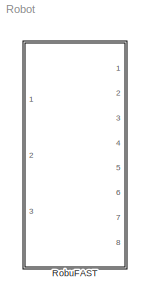
MODEL Robot
KIND model
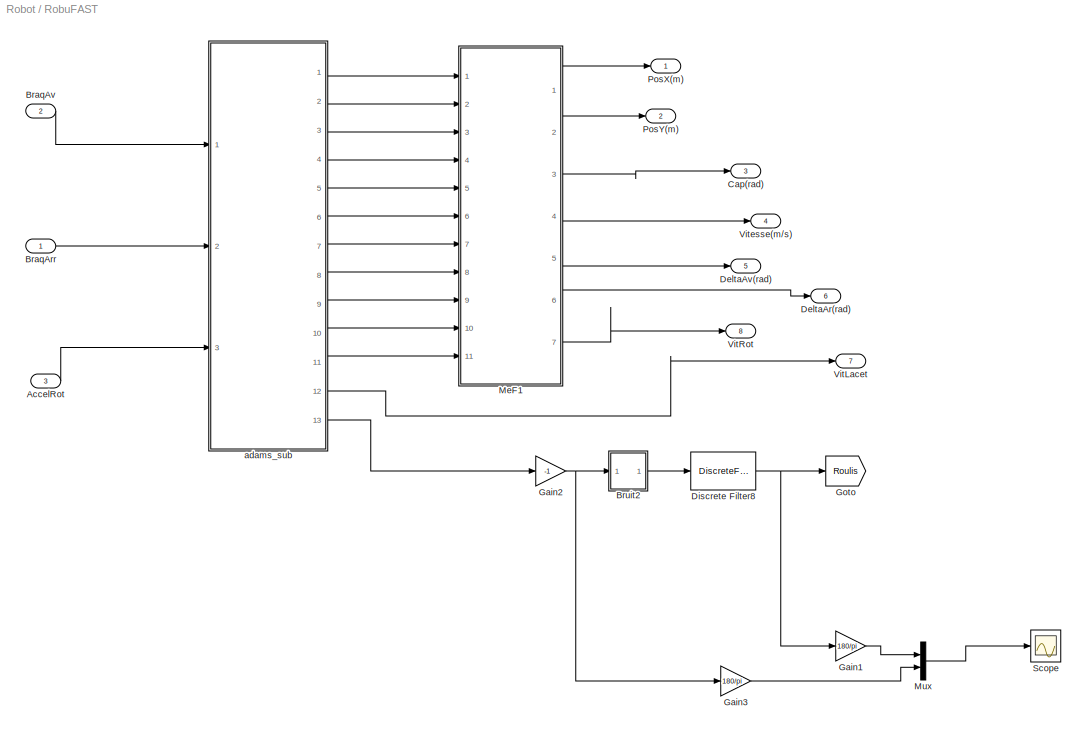
BLOCK [SubSystem] RobuFAST
  FunctionWithSeparateData = off
  MaskHideContents = off
  MinAlgLoopOccurrences = off
  Opaque = off
  Ports = [3, 8]
  PropExecContextOutsideSubsystem = off
  RTWSystemCode = Auto
  RequestExecContextInheritance = off
BLOCK [Inport] RobuFAST/AccelRot
  IconDisplay = Port number
  OutDataType = sfix(16)
  OutScaling = 2^0
  Port = 3
BLOCK [Inport] RobuFAST/BraqArr
  IconDisplay = Port number
  OutDataType = sfix(16)
  OutScaling = 2^0
BLOCK [Inport] RobuFAST/BraqAv
  IconDisplay = Port number
  OutDataType = sfix(16)
  OutScaling = 2^0
  Port = 2
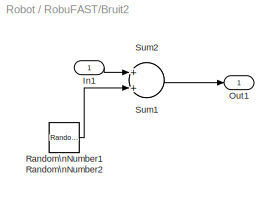
BLOCK [SubSystem] RobuFAST/Bruit2
  FunctionWithSeparateData = off
  MaskHideContents = off
  MinAlgLoopOccurrences = off
  Opaque = off
  Ports = [1, 1]
  PropExecContextOutsideSubsystem = off
  RTWSystemCode = Auto
  RequestExecContextInheritance = off
BLOCK [Inport] RobuFAST/Bruit2/In1
  IconDisplay = Port number
  OutDataType = sfix(16)
  OutScaling = 2^0
BLOCK [Outport] RobuFAST/Bruit2/Out1
  IconDisplay = Port number
  OutDataType = sfix(16)
  OutScaling = 2^0
BLOCK [RandomNumber] RobuFAST/Bruit2/Random\nNumber1
  Mean = 4*pi/180
  SampleTime = 0.05
  Seed = 15
  Variance = ((5/3)*pi/180)^2
BLOCK [RandomNumber] RobuFAST/Bruit2/Random\nNumber2
  SampleTime = 0.025
  Variance = 0.0007
BLOCK [Sum] RobuFAST/Bruit2/Sum1
  InputSameDT = off
  OutDataType = sfix(16)
  OutDataTypeMode = Inherit via internal rule
  OutDataTypeStr = Inherit: Inherit via internal rule
  OutScaling = 2^0
  Ports = [2, 1]
  SaturateOnIntegerOverflow = off
BLOCK [Sum] RobuFAST/Bruit2/Sum2
  InputSameDT = off
  OutDataType = sfix(16)
  OutDataTypeMode = Inherit via internal rule
  OutDataTypeStr = Inherit: Inherit via internal rule
  OutScaling = 2^0
  Ports = [2, 1]
  SaturateOnIntegerOverflow = off
BLOCK [Outport] RobuFAST/Cap(rad)
  IconDisplay = Port number
  OutDataType = sfix(16)
  OutScaling = 2^0
  Port = 3
BLOCK [Outport] RobuFAST/DeltaAr(rad)
  IconDisplay = Port number
  OutDataType = sfix(16)
  OutScaling = 2^0
  Port = 6
BLOCK [Outport] RobuFAST/DeltaAv(rad)
  IconDisplay = Port number
  OutDataType = sfix(16)
  OutScaling = 2^0
  Port = 5
BLOCK [DiscreteFilter] RobuFAST/Discrete Filter8
  Denominator = [1.0000    -0.9]
  Numerator = [0.05 0.05]
  SampleTime = 0.05
BLOCK [Gain] RobuFAST/Gain1
  Gain = 180/pi
  OutDataType = sfix(16)
  OutDataTypeMode = Inherit via internal rule
  OutDataTypeStr = Inherit: Inherit via internal rule
  OutScaling = 2^0
  ParamDataTypeStr = Inherit: Inherit via internal rule
  ParameterDataType = sfix(16)
  ParameterDataTypeMode = Inherit via internal rule
  ParameterScaling = 2^0
  SaturateOnIntegerOverflow = off
BLOCK [Gain] RobuFAST/Gain2
  Gain = -1
  OutDataType = sfix(16)
  OutDataTypeMode = Inherit via internal rule
  OutDataTypeStr = Inherit: Inherit via internal rule
  OutScaling = 2^0
  ParamDataTypeStr = Inherit: Inherit via internal rule
  ParameterDataType = sfix(16)
  ParameterDataTypeMode = Inherit via internal rule
  ParameterScaling = 2^0
  SaturateOnIntegerOverflow = off
BLOCK [Gain] RobuFAST/Gain3
  Gain = 180/pi
  OutDataType = sfix(16)
  OutDataTypeMode = Inherit via internal rule
  OutDataTypeStr = Inherit: Inherit via internal rule
  OutScaling = 2^0
  ParamDataTypeStr = Inherit: Inherit via internal rule
  ParameterDataType = sfix(16)
  ParameterDataTypeMode = Inherit via internal rule
  ParameterScaling = 2^0
  SaturateOnIntegerOverflow = off
BLOCK [Goto] RobuFAST/Goto
  GotoTag = Roulis
  TagVisibility = global
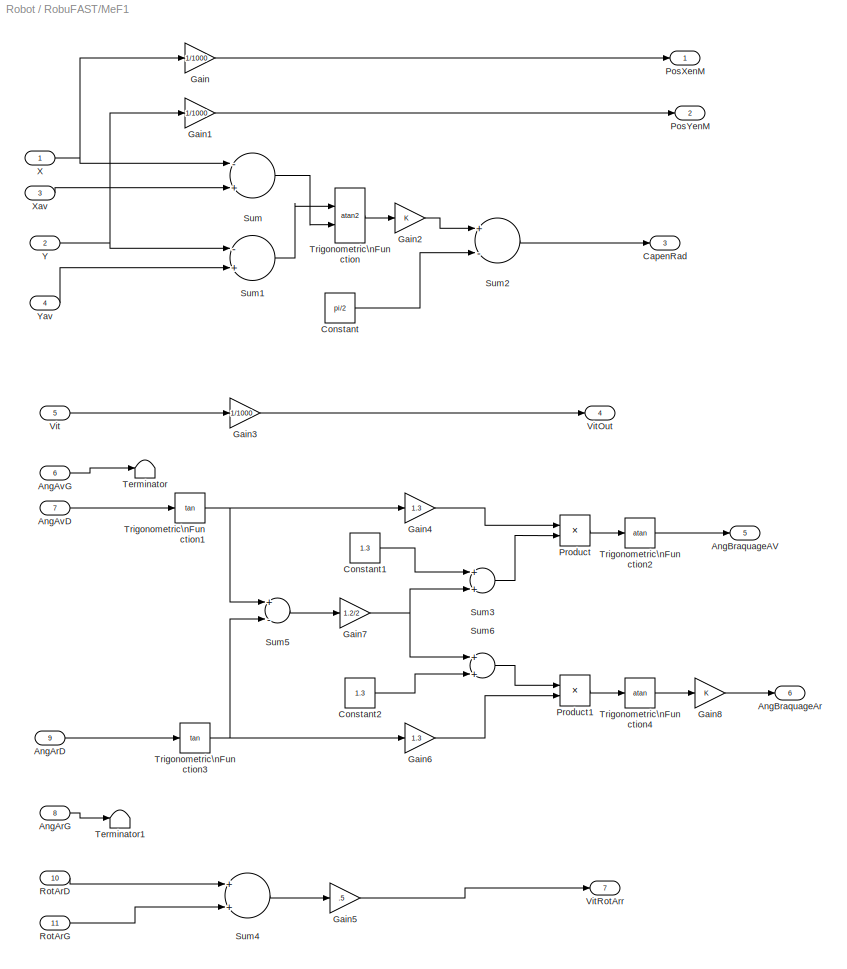
BLOCK [SubSystem] RobuFAST/MeF1
  FunctionWithSeparateData = off
  MaskHideContents = off
  MinAlgLoopOccurrences = off
  Opaque = off
  Ports = [11, 7]
  PropExecContextOutsideSubsystem = off
  RTWSystemCode = Auto
  RequestExecContextInheritance = off
BLOCK [Inport] RobuFAST/MeF1/AngArD
  IconDisplay = Port number
  OutDataType = sfix(16)
  OutScaling = 2^0
  Port = 9
BLOCK [Inport] RobuFAST/MeF1/AngArG
  IconDisplay = Port number
  OutDataType = sfix(16)
  OutScaling = 2^0
  Port = 8
BLOCK [Inport] RobuFAST/MeF1/AngAvD
  IconDisplay = Port number
  OutDataType = sfix(16)
  OutScaling = 2^0
  Port = 7
BLOCK [Inport] RobuFAST/MeF1/AngAvG
  IconDisplay = Port number
  OutDataType = sfix(16)
  OutScaling = 2^0
  Port = 6
BLOCK [Outport] RobuFAST/MeF1/AngBraquageAV
  IconDisplay = Port number
  OutDataType = sfix(16)
  OutScaling = 2^0
  Port = 5
BLOCK [Outport] RobuFAST/MeF1/AngBraquageAr
  IconDisplay = Port number
  OutDataType = sfix(16)
  OutScaling = 2^0
  Port = 6
BLOCK [Outport] RobuFAST/MeF1/CapenRad
  IconDisplay = Port number
  OutDataType = sfix(16)
  OutScaling = 2^0
  Port = 3
BLOCK [Constant] RobuFAST/MeF1/Constant
  OutDataType = sfix(16)
  OutScaling = 2^0
  Value = pi/2
BLOCK [Constant] RobuFAST/MeF1/Constant1
  OutDataType = sfix(16)
  OutScaling = 2^0
  Value = 1.3
BLOCK [Constant] RobuFAST/MeF1/Constant2
  OutDataType = sfix(16)
  OutScaling = 2^0
  Value = 1.3
BLOCK [Gain] RobuFAST/MeF1/Gain
  Gain = 1/1000
  OutDataType = sfix(16)
  OutDataTypeMode = Inherit via internal rule
  OutDataTypeStr = Inherit: Inherit via internal rule
  OutScaling = 2^0
  ParamDataTypeStr = Inherit: Inherit via internal rule
  ParameterDataType = sfix(16)
  ParameterDataTypeMode = Inherit via internal rule
  ParameterScaling = 2^0
  SaturateOnIntegerOverflow = off
BLOCK [Gain] RobuFAST/MeF1/Gain1
  Gain = 1/1000
  OutDataType = sfix(16)
  OutDataTypeMode = Inherit via internal rule
  OutDataTypeStr = Inherit: Inherit via internal rule
  OutScaling = 2^0
  ParamDataTypeStr = Inherit: Inherit via internal rule
  ParameterDataType = sfix(16)
  ParameterDataTypeMode = Inherit via internal rule
  ParameterScaling = 2^0
  SaturateOnIntegerOverflow = off
BLOCK [Gain] RobuFAST/MeF1/Gain2
  OutDataType = sfix(16)
  OutDataTypeMode = Inherit via internal rule
  OutDataTypeStr = Inherit: Inherit via internal rule
  OutScaling = 2^0
  ParamDataTypeStr = Inherit: Inherit via internal rule
  ParameterDataType = sfix(16)
  ParameterDataTypeMode = Inherit via internal rule
  ParameterScaling = 2^0
  SaturateOnIntegerOverflow = off
BLOCK [Gain] RobuFAST/MeF1/Gain3
  Gain = 1/1000
  OutDataType = sfix(16)
  OutDataTypeMode = Inherit via internal rule
  OutDataTypeStr = Inherit: Inherit via internal rule
  OutScaling = 2^0
  ParamDataTypeStr = Inherit: Inherit via internal rule
  ParameterDataType = sfix(16)
  ParameterDataTypeMode = Inherit via internal rule
  ParameterScaling = 2^0
  SaturateOnIntegerOverflow = off
BLOCK [Gain] RobuFAST/MeF1/Gain4
  Gain = 1.3
  OutDataType = sfix(16)
  OutDataTypeMode = Inherit via internal rule
  OutDataTypeStr = Inherit: Inherit via internal rule
  OutScaling = 2^0
  ParamDataTypeStr = Inherit: Inherit via internal rule
  ParameterDataType = sfix(16)
  ParameterDataTypeMode = Inherit via internal rule
  ParameterScaling = 2^0
  SaturateOnIntegerOverflow = off
BLOCK [Gain] RobuFAST/MeF1/Gain5
  Gain = .5
  OutDataType = sfix(16)
  OutDataTypeMode = Inherit via internal rule
  OutDataTypeStr = Inherit: Inherit via internal rule
  OutScaling = 2^0
  ParamDataTypeStr = Inherit: Inherit via internal rule
  ParameterDataType = sfix(16)
  ParameterDataTypeMode = Inherit via internal rule
  ParameterScaling = 2^0
  SaturateOnIntegerOverflow = off
BLOCK [Gain] RobuFAST/MeF1/Gain6
  Gain = 1.3
  OutDataType = sfix(16)
  OutDataTypeMode = Inherit via internal rule
  OutDataTypeStr = Inherit: Inherit via internal rule
  OutScaling = 2^0
  ParamDataTypeStr = Inherit: Inherit via internal rule
  ParameterDataType = sfix(16)
  ParameterDataTypeMode = Inherit via internal rule
  ParameterScaling = 2^0
  SaturateOnIntegerOverflow = off
BLOCK [Gain] RobuFAST/MeF1/Gain7
  Gain = 1.2/2
  OutDataType = sfix(16)
  OutDataTypeMode = Inherit via internal rule
  OutDataTypeStr = Inherit: Inherit via internal rule
  OutScaling = 2^0
  ParamDataTypeStr = Inherit: Inherit via internal rule
  ParameterDataType = sfix(16)
  ParameterDataTypeMode = Inherit via internal rule
  ParameterScaling = 2^0
  SaturateOnIntegerOverflow = off
BLOCK [Gain] RobuFAST/MeF1/Gain8
  OutDataType = sfix(16)
  OutDataTypeMode = Inherit via internal rule
  OutDataTypeStr = Inherit: Inherit via internal rule
  OutScaling = 2^0
  ParamDataTypeStr = Inherit: Inherit via internal rule
  ParameterDataType = sfix(16)
  ParameterDataTypeMode = Inherit via internal rule
  ParameterScaling = 2^0
  SaturateOnIntegerOverflow = off
BLOCK [Outport] RobuFAST/MeF1/PosXenM
  IconDisplay = Port number
  OutDataType = sfix(16)
  OutScaling = 2^0
BLOCK [Outport] RobuFAST/MeF1/PosYenM
  IconDisplay = Port number
  OutDataType = sfix(16)
  OutScaling = 2^0
  Port = 2
BLOCK [Product] RobuFAST/MeF1/Product
  InputSameDT = off
  Inputs = */
  OutDataType = sfix(16)
  OutDataTypeMode = Inherit via internal rule
  OutDataTypeStr = Inherit: Inherit via internal rule
  OutScaling = 2^0
  Ports = [2, 1]
  SaturateOnIntegerOverflow = off
BLOCK [Product] RobuFAST/MeF1/Product1
  InputSameDT = off
  Inputs = /*
  OutDataType = sfix(16)
  OutDataTypeMode = Inherit via internal rule
  OutDataTypeStr = Inherit: Inherit via internal rule
  OutScaling = 2^0
  Ports = [2, 1]
  SaturateOnIntegerOverflow = off
BLOCK [Inport] RobuFAST/MeF1/RotArD
  IconDisplay = Port number
  OutDataType = sfix(16)
  OutScaling = 2^0
  Port = 10
BLOCK [Inport] RobuFAST/MeF1/RotArG
  IconDisplay = Port number
  OutDataType = sfix(16)
  OutScaling = 2^0
  Port = 11
BLOCK [Sum] RobuFAST/MeF1/Sum
  InputSameDT = off
  Inputs = -+
  OutDataType = sfix(16)
  OutDataTypeMode = Inherit via internal rule
  OutDataTypeStr = Inherit: Inherit via internal rule
  OutScaling = 2^0
  Ports = [2, 1]
  SaturateOnIntegerOverflow = off
BLOCK [Sum] RobuFAST/MeF1/Sum1
  InputSameDT = off
  Inputs = -+
  OutDataType = sfix(16)
  OutDataTypeMode = Inherit via internal rule
  OutDataTypeStr = Inherit: Inherit via internal rule
  OutScaling = 2^0
  Ports = [2, 1]
  SaturateOnIntegerOverflow = off
BLOCK [Sum] RobuFAST/MeF1/Sum2
  InputSameDT = off
  Inputs = +-
  OutDataType = sfix(16)
  OutDataTypeMode = Inherit via internal rule
  OutDataTypeStr = Inherit: Inherit via internal rule
  OutScaling = 2^0
  Ports = [2, 1]
  SaturateOnIntegerOverflow = off
BLOCK [Sum] RobuFAST/MeF1/Sum3
  InputSameDT = off
  OutDataType = sfix(16)
  OutDataTypeMode = Inherit via internal rule
  OutDataTypeStr = Inherit: Inherit via internal rule
  OutScaling = 2^0
  Ports = [2, 1]
  SaturateOnIntegerOverflow = off
BLOCK [Sum] RobuFAST/MeF1/Sum4
  InputSameDT = off
  OutDataType = sfix(16)
  OutDataTypeMode = Inherit via internal rule
  OutDataTypeStr = Inherit: Inherit via internal rule
  OutScaling = 2^0
  Ports = [2, 1]
  SaturateOnIntegerOverflow = off
BLOCK [Sum] RobuFAST/MeF1/Sum5
  InputSameDT = off
  Inputs = +-
  OutDataType = sfix(16)
  OutDataTypeMode = Inherit via internal rule
  OutDataTypeStr = Inherit: Inherit via internal rule
  OutScaling = 2^0
  Ports = [2, 1]
  SaturateOnIntegerOverflow = off
BLOCK [Sum] RobuFAST/MeF1/Sum6
  InputSameDT = off
  OutDataType = sfix(16)
  OutDataTypeMode = Inherit via internal rule
  OutDataTypeStr = Inherit: Inherit via internal rule
  OutScaling = 2^0
  Ports = [2, 1]
  SaturateOnIntegerOverflow = off
BLOCK [Terminator] RobuFAST/MeF1/Terminator
BLOCK [Terminator] RobuFAST/MeF1/Terminator1
BLOCK [Trigonometry] RobuFAST/MeF1/Trigonometric\nFunction
  Operator = atan2
  Ports = [2, 1]
BLOCK [Trigonometry] RobuFAST/MeF1/Trigonometric\nFunction1
  Operator = tan
  Ports = [1, 1]
BLOCK [Trigonometry] RobuFAST/MeF1/Trigonometric\nFunction2
  Operator = atan
  Ports = [1, 1]
BLOCK [Trigonometry] RobuFAST/MeF1/Trigonometric\nFunction3
  Operator = tan
  Ports = [1, 1]
BLOCK [Trigonometry] RobuFAST/MeF1/Trigonometric\nFunction4
  Operator = atan
  Ports = [1, 1]
BLOCK [Inport] RobuFAST/MeF1/Vit
  IconDisplay = Port number
  OutDataType = sfix(16)
  OutScaling = 2^0
  Port = 5
BLOCK [Outport] RobuFAST/MeF1/VitOut
  IconDisplay = Port number
  OutDataType = sfix(16)
  OutScaling = 2^0
  Port = 4
BLOCK [Outport] RobuFAST/MeF1/VitRotArr
  IconDisplay = Port number
  OutDataType = sfix(16)
  OutScaling = 2^0
  Port = 7
BLOCK [Inport] RobuFAST/MeF1/X
  IconDisplay = Port number
  OutDataType = sfix(16)
  OutScaling = 2^0
BLOCK [Inport] RobuFAST/MeF1/Xav
  IconDisplay = Port number
  OutDataType = sfix(16)
  OutScaling = 2^0
  Port = 3
BLOCK [Inport] RobuFAST/MeF1/Y
  IconDisplay = Port number
  OutDataType = sfix(16)
  OutScaling = 2^0
  Port = 2
BLOCK [Inport] RobuFAST/MeF1/Yav
  IconDisplay = Port number
  OutDataType = sfix(16)
  OutScaling = 2^0
  Port = 4
BLOCK [Mux] RobuFAST/Mux
  DisplayOption = bar
  Inputs = 2
  Ports = [2, 1]
BLOCK [Outport] RobuFAST/PosX(m)
  IconDisplay = Port number
  OutDataType = sfix(16)
  OutScaling = 2^0
BLOCK [Outport] RobuFAST/PosY(m)
  IconDisplay = Port number
  OutDataType = sfix(16)
  OutScaling = 2^0
  Port = 2
BLOCK [Scope] RobuFAST/Scope
  DataFormat = StructureWithTime
  Floating = off
  NumInputPorts = 1
  Ports = [1]
  SampleTime = 0
  TimeRange = 10
  YMax = 4.5
  YMin = -0.25
  ZoomMode = yonly
BLOCK [Outport] RobuFAST/VitLacet
  IconDisplay = Port number
  OutDataType = sfix(16)
  OutScaling = 2^0
  Port = 7
BLOCK [Outport] RobuFAST/VitRot
  IconDisplay = Port number
  OutDataType = sfix(16)
  OutScaling = 2^0
  Port = 8
BLOCK [Outport] RobuFAST/Vitesse(m//s)
  IconDisplay = Port number
  OutDataType = sfix(16)
  OutScaling = 2^0
  Port = 4
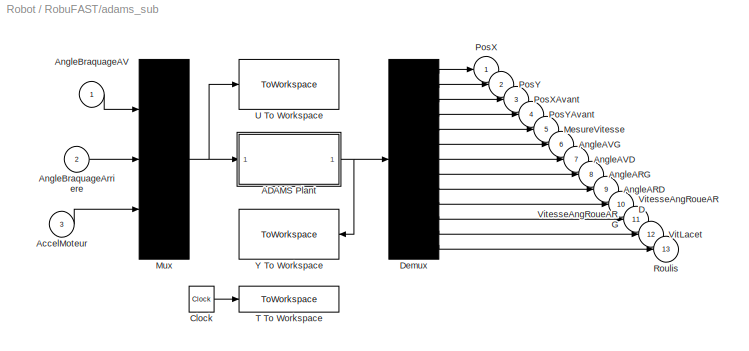
BLOCK [SubSystem] RobuFAST/adams_sub
  FunctionWithSeparateData = off
  MaskHideContents = off
  MinAlgLoopOccurrences = off
  Opaque = off
  Ports = [3, 13]
  PropExecContextOutsideSubsystem = off
  RTWSystemCode = Auto
  RequestExecContextInheritance = off
  ShowPortLabels = none
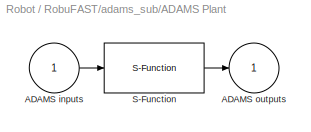
BLOCK [SubSystem] RobuFAST/adams_sub/ADAMS Plant
  FunctionWithSeparateData = off
  MaskCallbackString = |||||||||||||||||
  MaskDescription = Simulate any Adams plant model either in Adams/Solver form (.adm file) or in Adams/View form (.cmd file)
  MaskDisplay = disp( 'MSCSoftware' )
  MaskEnableString = on,on,on,on,on,on,on,on,on,on,on,on,on,on,on,on,on,on
  MaskHideContents = off
  MaskIconFrame = on
  MaskIconOpaque = on
  MaskIconRotate = none
  MaskIconUnits = autoscale
  MaskPromptString = Adams install directory|Adams working directory|Interprocess Option|Adams host|Adams solver type|User executable (opt.: if blank - use standard)|Adams model file prefix|Adams/View input names|Adams/View output names|Output files prefix (opt.: if blank - no output)|Communication Interval|Number of communications per output step|Interpolation Order|Direct Feedthrough |Simulation     mode|Animation  ...<+63ch>
  MaskStyleString = edit,edit,popup(PIPE(DDE)|TCP/IP),edit,popup(Fortran|C++),edit,edit,edit,edit,edit,edit,edit,edit,popup(no|yes),popup(discrete|continuous),popup(batch|interactive),edit,edit
  MaskTabNameString = ,,,,,,,,,,,,,,,,,
  MaskToolTipString = on,on,on,on,on,on,on,on,on,on,on,on,on,on,on,on,on,on
  MaskTunableValueString = on,on,on,on,on,on,on,on,on,on,on,on,on,on,on,on,on,on
  MaskType = Adams Plant
  MaskValueString = ADAMS_sysdir|ADAMS_cwd|PIPE(DDE)|ADAMS_host|C++|ADAMS_exec|ADAMS_prefix|ADAMS_inputs|ADAMS_outputs|ADAMS_prefix|0.005|1|0|no|discrete|interactive|ADAMS_static|[ADAMS_init]
  MaskVarAliasString = ,,,,,,,,,,,,,,,,,
  MaskVariables = exevie=@1;workdir=@2;comtyp=&3;ada_host=@4;exetyp=&5;exesol=@6;nampre=@7;nam_in=@8;namout=@9;outfil=@10;dt_out=@11;o_rate=@12;interorder=@13;dft=&14;modsim=&15;modani=&16;stat=@17;inicmd=@18;
  MaskVisibilityString = on,on,on,on,on,on,on,on,on,on,on,on,on,on,on,on,on,on
  MinAlgLoopOccurrences = off
  Opaque = off
  Ports = [1, 1]
  PropExecContextOutsideSubsystem = off
  RTWSystemCode = Auto
  RequestExecContextInheritance = off
BLOCK [Inport] RobuFAST/adams_sub/ADAMS Plant/ADAMS inputs
  IconDisplay = Port number
BLOCK [Outport] RobuFAST/adams_sub/ADAMS Plant/ADAMS outputs
  IconDisplay = Port number
  InitialOutput = 0
BLOCK [S-Function] RobuFAST/adams_sub/ADAMS Plant/S-Function
  EnableBusSupport = off
  FunctionName = adams_plant
  Parameters = exevie,exesol,stat,outfil,nampre,o_rate,nam_in,namout,dft,modsim,modani,dt_out,inicmd,exetyp,comtyp,ada_host, workdir,interorder
  Ports = [1, 1]
BLOCK [Inport] RobuFAST/adams_sub/AccelMoteur         
  IconDisplay = Port number
  Port = 3
BLOCK [Outport] RobuFAST/adams_sub/AngleARD         
  IconDisplay = Port number
  Port = 9
BLOCK [Outport] RobuFAST/adams_sub/AngleARG         
  IconDisplay = Port number
  Port = 8
BLOCK [Outport] RobuFAST/adams_sub/AngleAVD         
  IconDisplay = Port number
  Port = 7
BLOCK [Outport] RobuFAST/adams_sub/AngleAVG         
  IconDisplay = Port number
  Port = 6
BLOCK [Inport] RobuFAST/adams_sub/AngleBraquageAV     
  IconDisplay = Port number
BLOCK [Inport] RobuFAST/adams_sub/AngleBraquageArriere
  IconDisplay = Port number
  Port = 2
BLOCK [Clock] RobuFAST/adams_sub/Clock
  Decimation = 10
BLOCK [Demux] RobuFAST/adams_sub/Demux
  Outputs = 13
  Ports = [1, 13]
BLOCK [Outport] RobuFAST/adams_sub/MesureVitesse    
  IconDisplay = Port number
  Port = 5
BLOCK [Mux] RobuFAST/adams_sub/Mux
  Inputs = 3
  Ports = [3, 1]
BLOCK [Outport] RobuFAST/adams_sub/PosX             
  IconDisplay = Port number
BLOCK [Outport] RobuFAST/adams_sub/PosXAvant        
  IconDisplay = Port number
  Port = 3
BLOCK [Outport] RobuFAST/adams_sub/PosY             
  IconDisplay = Port number
  Port = 2
BLOCK [Outport] RobuFAST/adams_sub/PosYAvant        
  IconDisplay = Port number
  Port = 4
BLOCK [Outport] RobuFAST/adams_sub/Roulis           
  IconDisplay = Port number
  Port = 13
BLOCK [ToWorkspace] RobuFAST/adams_sub/T To Workspace
  MaxDataPoints = 100000
  SaveFormat = Array
  VariableName = ADAMS_tout
BLOCK [ToWorkspace] RobuFAST/adams_sub/U To Workspace
  MaxDataPoints = 100000
  SaveFormat = Array
  VariableName = ADAMS_uout
BLOCK [Outport] RobuFAST/adams_sub/VitLacet         
  IconDisplay = Port number
  Port = 12
BLOCK [Outport] RobuFAST/adams_sub/VitesseAngRoueARD
  IconDisplay = Port number
  Port = 10
BLOCK [Outport] RobuFAST/adams_sub/VitesseAngRoueARG
  IconDisplay = Port number
  Port = 11
BLOCK [ToWorkspace] RobuFAST/adams_sub/Y To Workspace
  MaxDataPoints = 100000
  SaveFormat = Array
  VariableName = ADAMS_yout
LINE RobuFAST/AccelRot:1 -> RobuFAST/adams_sub:3
LINE RobuFAST/BraqArr:1 -> RobuFAST/adams_sub:2
LINE RobuFAST/BraqAv:1 -> RobuFAST/adams_sub:1
LINE RobuFAST/Bruit2/In1:1 -> RobuFAST/Bruit2/Sum1:1
LINE RobuFAST/Bruit2/Random\nNumber2:1 -> RobuFAST/Bruit2/Sum1:2
LINE RobuFAST/Bruit2/Sum1:1 -> RobuFAST/Bruit2/Out1:1
LINE RobuFAST/Bruit2:1 -> RobuFAST/Discrete Filter8:1
NET RobuFAST/Discrete Filter8:1 -> RobuFAST/Gain1:1, RobuFAST/Goto:1
LINE RobuFAST/Gain1:1 -> RobuFAST/Mux:1
NET RobuFAST/Gain2:1 -> RobuFAST/Bruit2:1, RobuFAST/Gain3:1
LINE RobuFAST/Gain3:1 -> RobuFAST/Mux:2
LINE RobuFAST/MeF1/AngArD:1 -> RobuFAST/MeF1/Trigonometric\nFunction3:1
LINE RobuFAST/MeF1/AngArG:1 -> RobuFAST/MeF1/Terminator1:1
LINE RobuFAST/MeF1/AngAvD:1 -> RobuFAST/MeF1/Trigonometric\nFunction1:1
LINE RobuFAST/MeF1/AngAvG:1 -> RobuFAST/MeF1/Terminator:1
LINE RobuFAST/MeF1/Constant1:1 -> RobuFAST/MeF1/Sum3:1
LINE RobuFAST/MeF1/Constant2:1 -> RobuFAST/MeF1/Sum6:2
LINE RobuFAST/MeF1/Constant:1 -> RobuFAST/MeF1/Sum2:2
LINE RobuFAST/MeF1/Gain1:1 -> RobuFAST/MeF1/PosYenM:1
LINE RobuFAST/MeF1/Gain2:1 -> RobuFAST/MeF1/Sum2:1
LINE RobuFAST/MeF1/Gain3:1 -> RobuFAST/MeF1/VitOut:1
LINE RobuFAST/MeF1/Gain4:1 -> RobuFAST/MeF1/Product:1
LINE RobuFAST/MeF1/Gain5:1 -> RobuFAST/MeF1/VitRotArr:1
LINE RobuFAST/MeF1/Gain6:1 -> RobuFAST/MeF1/Product1:2
NET RobuFAST/MeF1/Gain7:1 -> RobuFAST/MeF1/Sum3:2, RobuFAST/MeF1/Sum6:1
LINE RobuFAST/MeF1/Gain8:1 -> RobuFAST/MeF1/AngBraquageAr:1
LINE RobuFAST/MeF1/Gain:1 -> RobuFAST/MeF1/PosXenM:1
LINE RobuFAST/MeF1/Product1:1 -> RobuFAST/MeF1/Trigonometric\nFunction4:1
LINE RobuFAST/MeF1/Product:1 -> RobuFAST/MeF1/Trigonometric\nFunction2:1
LINE RobuFAST/MeF1/RotArD:1 -> RobuFAST/MeF1/Sum4:1
LINE RobuFAST/MeF1/RotArG:1 -> RobuFAST/MeF1/Sum4:2
LINE RobuFAST/MeF1/Sum1:1 -> RobuFAST/MeF1/Trigonometric\nFunction:1
LINE RobuFAST/MeF1/Sum2:1 -> RobuFAST/MeF1/CapenRad:1
LINE RobuFAST/MeF1/Sum3:1 -> RobuFAST/MeF1/Product:2
LINE RobuFAST/MeF1/Sum4:1 -> RobuFAST/MeF1/Gain5:1
LINE RobuFAST/MeF1/Sum5:1 -> RobuFAST/MeF1/Gain7:1
LINE RobuFAST/MeF1/Sum6:1 -> RobuFAST/MeF1/Product1:1
LINE RobuFAST/MeF1/Sum:1 -> RobuFAST/MeF1/Trigonometric\nFunction:2
NET RobuFAST/MeF1/Trigonometric\nFunction1:1 -> RobuFAST/MeF1/Gain4:1, RobuFAST/MeF1/Sum5:1
LINE RobuFAST/MeF1/Trigonometric\nFunction2:1 -> RobuFAST/MeF1/AngBraquageAV:1
NET RobuFAST/MeF1/Trigonometric\nFunction3:1 -> RobuFAST/MeF1/Gain6:1, RobuFAST/MeF1/Sum5:2
LINE RobuFAST/MeF1/Trigonometric\nFunction4:1 -> RobuFAST/MeF1/Gain8:1
LINE RobuFAST/MeF1/Trigonometric\nFunction:1 -> RobuFAST/MeF1/Gain2:1
LINE RobuFAST/MeF1/Vit:1 -> RobuFAST/MeF1/Gain3:1
NET RobuFAST/MeF1/X:1 -> RobuFAST/MeF1/Gain:1, RobuFAST/MeF1/Sum:1
LINE RobuFAST/MeF1/Xav:1 -> RobuFAST/MeF1/Sum:2
NET RobuFAST/MeF1/Y:1 -> RobuFAST/MeF1/Gain1:1, RobuFAST/MeF1/Sum1:1
LINE RobuFAST/MeF1/Yav:1 -> RobuFAST/MeF1/Sum1:2
LINE RobuFAST/MeF1:1 -> RobuFAST/PosX(m):1
LINE RobuFAST/MeF1:2 -> RobuFAST/PosY(m):1
LINE RobuFAST/MeF1:3 -> RobuFAST/Cap(rad):1
LINE RobuFAST/MeF1:4 -> RobuFAST/Vitesse(m//s):1
LINE RobuFAST/MeF1:5 -> RobuFAST/DeltaAv(rad):1
LINE RobuFAST/MeF1:6 -> RobuFAST/DeltaAr(rad):1
LINE RobuFAST/MeF1:7 -> RobuFAST/VitRot:1
LINE RobuFAST/Mux:1 -> RobuFAST/Scope:1
LINE RobuFAST/adams_sub/ADAMS Plant/ADAMS inputs:1 -> RobuFAST/adams_sub/ADAMS Plant/S-Function:1
LINE RobuFAST/adams_sub/ADAMS Plant/S-Function:1 -> RobuFAST/adams_sub/ADAMS Plant/ADAMS outputs:1
NET RobuFAST/adams_sub/ADAMS Plant:1 -> RobuFAST/adams_sub/Demux:1, RobuFAST/adams_sub/Y To Workspace:1
LINE RobuFAST/adams_sub/AccelMoteur         :1 -> RobuFAST/adams_sub/Mux:3
LINE RobuFAST/adams_sub/AngleBraquageAV     :1 -> RobuFAST/adams_sub/Mux:1
LINE RobuFAST/adams_sub/AngleBraquageArriere:1 -> RobuFAST/adams_sub/Mux:2
LINE RobuFAST/adams_sub/Clock:1 -> RobuFAST/adams_sub/T To Workspace:1
LINE RobuFAST/adams_sub/Demux:1 -> RobuFAST/adams_sub/PosX             :1
LINE RobuFAST/adams_sub/Demux:10 -> RobuFAST/adams_sub/VitesseAngRoueARD:1
LINE RobuFAST/adams_sub/Demux:11 -> RobuFAST/adams_sub/VitesseAngRoueARG:1
LINE RobuFAST/adams_sub/Demux:12 -> RobuFAST/adams_sub/VitLacet         :1
LINE RobuFAST/adams_sub/Demux:13 -> RobuFAST/adams_sub/Roulis           :1
LINE RobuFAST/adams_sub/Demux:2 -> RobuFAST/adams_sub/PosY             :1
LINE RobuFAST/adams_sub/Demux:3 -> RobuFAST/adams_sub/PosXAvant        :1
LINE RobuFAST/adams_sub/Demux:4 -> RobuFAST/adams_sub/PosYAvant        :1
LINE RobuFAST/adams_sub/Demux:5 -> RobuFAST/adams_sub/MesureVitesse    :1
LINE RobuFAST/adams_sub/Demux:6 -> RobuFAST/adams_sub/AngleAVG         :1
LINE RobuFAST/adams_sub/Demux:7 -> RobuFAST/adams_sub/AngleAVD         :1
LINE RobuFAST/adams_sub/Demux:8 -> RobuFAST/adams_sub/AngleARG         :1
LINE RobuFAST/adams_sub/Demux:9 -> RobuFAST/adams_sub/AngleARD         :1
NET RobuFAST/adams_sub/Mux:1 -> RobuFAST/adams_sub/ADAMS Plant:1, RobuFAST/adams_sub/U To Workspace:1
LINE RobuFAST/adams_sub:1 -> RobuFAST/MeF1:1
LINE RobuFAST/adams_sub:10 -> RobuFAST/MeF1:10
LINE RobuFAST/adams_sub:11 -> RobuFAST/MeF1:11
LINE RobuFAST/adams_sub:12 -> RobuFAST/VitLacet:1
LINE RobuFAST/adams_sub:13 -> RobuFAST/Gain2:1
LINE RobuFAST/adams_sub:2 -> RobuFAST/MeF1:2
LINE RobuFAST/adams_sub:3 -> RobuFAST/MeF1:3
LINE RobuFAST/adams_sub:4 -> RobuFAST/MeF1:4
LINE RobuFAST/adams_sub:5 -> RobuFAST/MeF1:5
LINE RobuFAST/adams_sub:6 -> RobuFAST/MeF1:6
LINE RobuFAST/adams_sub:7 -> RobuFAST/MeF1:7
LINE RobuFAST/adams_sub:8 -> RobuFAST/MeF1:8
LINE RobuFAST/adams_sub:9 -> RobuFAST/MeF1:9
note: NET lines group one-source signal fan-out (src -> all destinations, sorted); 1:1 wires keep LINE
